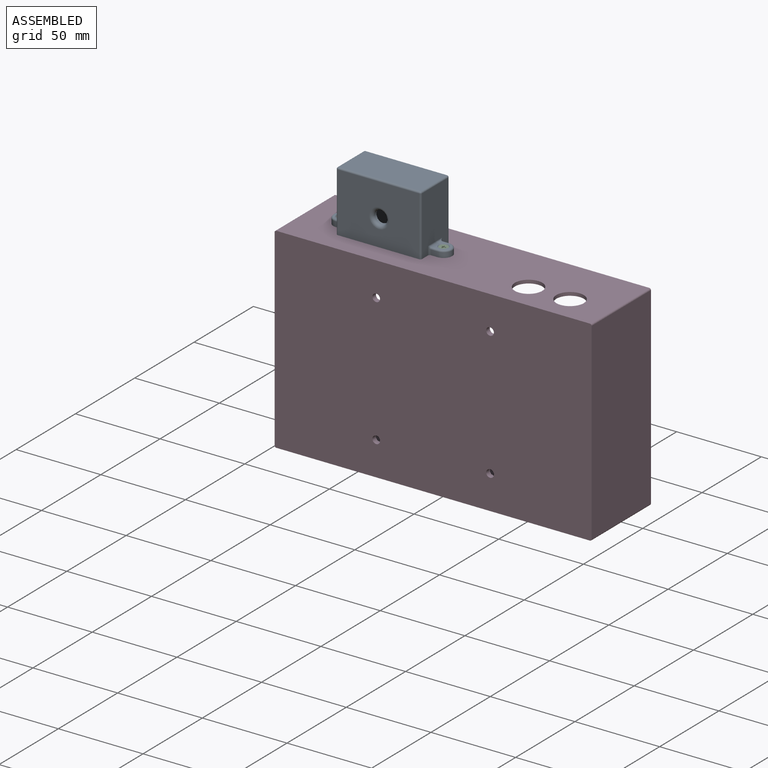
[diagram: assembled view]
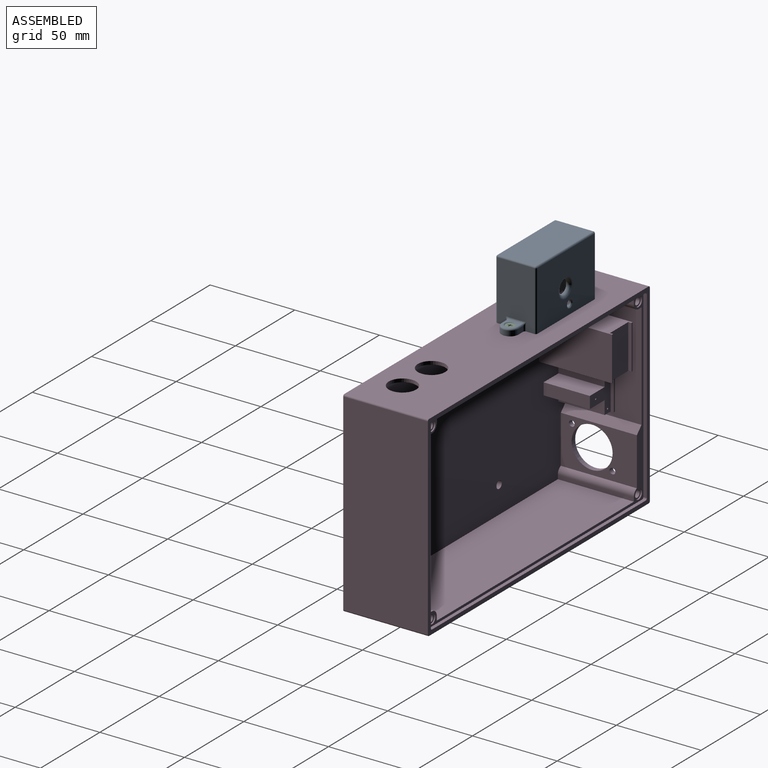
[diagram: assembled view, second angle]
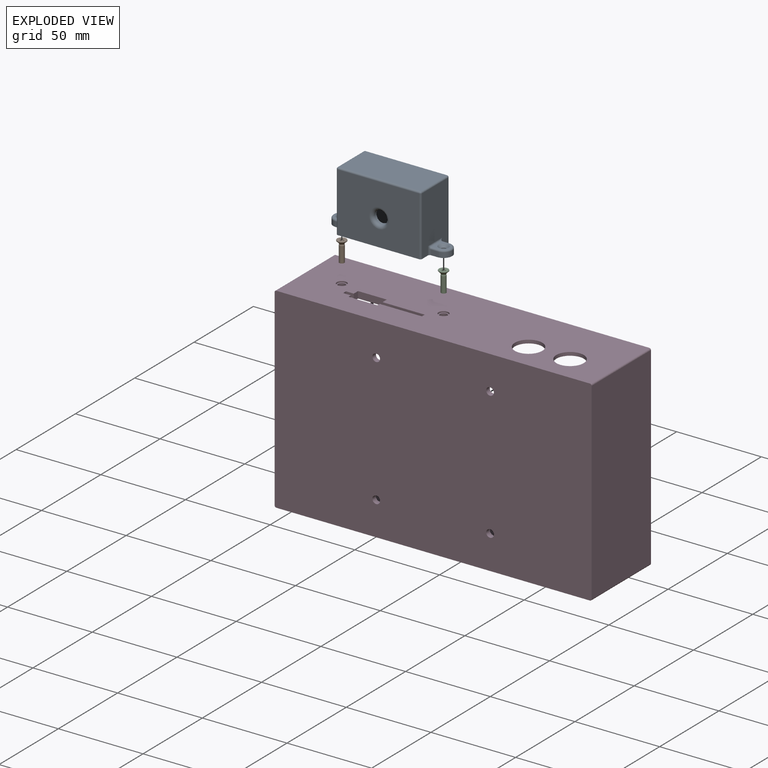
[diagram: exploded view]
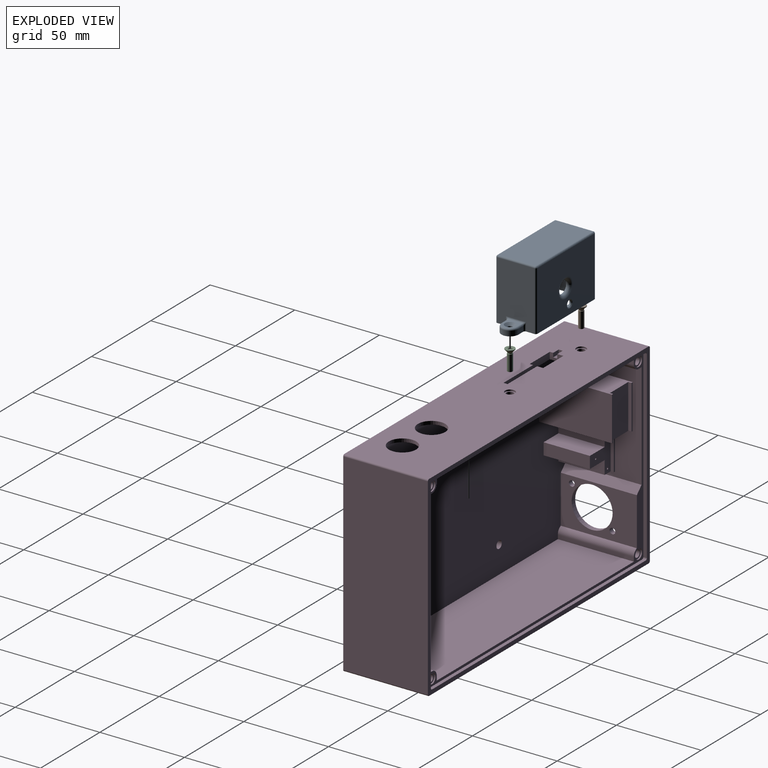
[diagram: exploded view, second angle]
ASSEMBLY  parts=4 mates=4
PART A: 74 faces, bbox 70.9x24x36 mm
  f0: plane 13.6x1mm, normal (-1,0,0), area 13.6mm2, adj f13,f18,f19,f73
  f1: plane 35x22mm, normal (-1,0,0), area 710mm2, adj f5,f37,f38,f39,f42,f48,f51
  f2: plane 35x2mm, normal (-1,0,0), area 70mm2, adj f5,f11,f21,f23
  f3: plane 35x2mm, normal (1,0,0), area 70mm2, adj f4,f5,f21,f23
  f4: plane 35x4.7mm, normal (0,-1,0), area 164.5mm2, adj f3,f5,f12,f23
  f5: plane 70.1x24mm, normal (0,0,1), area 477.3mm2, adj f1,f2,f3,f4,f7,f8,f9,f11
  f6: plane 28.8x15.8mm, normal (0,0,1), area 455mm2, adj f13,f14,f20,f25
  f7: plane 48.1x35mm, normal (0,1,0), area 1574.1mm2, adj f5,f45,f49,f51,f68
  f8: plane 48.1x35mm, normal (0,-1,0), area 1557.5mm2, adj f5,f40,f42,f43,f69,f71
  f9: plane 35x22mm, normal (1,0,0), area 710mm2, adj f5,f34,f35,f36,f40,f44,f45
  f10: plane 48.1x22mm, normal (0,0,-1), area 1058.2mm2, adj f43,f44,f48,f49
  f11: plane 35x28.8mm, normal (0,-1,0), area 960.2mm2, adj f2,f5,f14,f23,f67
  f12: plane 35x18.2mm, normal (1,0,0), area 562.7mm2, adj f4,f5,f13,f15,f23,f24
  f13: plane 46.7x35mm, normal (0,1,0), area 1138.7mm2, adj f0,f5,f6,f12,f14,f15,f16,f17
  f14: plane 35x18.2mm, normal (-1,0,0), area 562.7mm2, adj f5,f6,f11,f13,f23,f25
  f15: plane 15.8x4.7mm, normal (0,0,1), area 74.3mm2, adj f12,f13,f22,f24
  f16: plane 3.8x1mm, normal (-1,0,0), area 3.8mm2, adj f5,f13,f18,f72
  f17: plane 21x1mm, normal (1,0,0), area 21mm2, adj f5,f13,f18,f19
  f18: plane 21x15.5mm, normal (0,1,0), area 280.4mm2, adj f0,f5,f16,f17,f19,f70,f72,f73
  f19: plane 13.2x1mm, normal (0,0,1), area 13.2mm2, adj f0,f13,f17,f18
  f20: plane 15.8x4.7mm, normal (-1,0,0), area 74.3mm2, adj f6,f13,f23,f25
  f21: plane 35x13.2mm, normal (0,-1,0), area 462mm2, adj f2,f3,f5,f23
  f22: plane 15.8x4.7mm, normal (1,0,0), area 74.3mm2, adj f13,f15,f23,f24
  f23: plane 46.7x20.2mm, normal (0,0,1), area 347mm2, adj f2,f3,f4,f11,f12,f13,f14,f20
  f24: plane 4.7x4.7mm, normal (0,1,0), area 22.1mm2, adj f12,f15,f22,f23
  f25: plane 28.8x4.7mm, normal (0,1,0), area 135.4mm2, adj f6,f14,f20,f23
  f26: plane 4x3mm, normal (0,-1,0), area 12mm2, adj f5,f33,f37,f53
  f27: plane 4x3mm, normal (0,1,0), area 12mm2, adj f5,f33,f39,f55
  f28: plane 8x8mm, normal (0,0,-1), area 28.9mm2, adj f38,f53,f54,f55,f63
  f29: plane 4x3mm, normal (0,1,0), area 12mm2, adj f5,f32,f34,f58
  f30: plane 4x3mm, normal (0,-1,0), area 12mm2, adj f5,f32,f36,f60
  f31: plane 8x8mm, normal (0,0,-1), area 28.9mm2, adj f35,f58,f59,f60,f65
  f32: cylinder r=5mm len=10mm, axis (0,0,-1), area 47.1mm2, adj f5,f29,f30,f59
  f33: cylinder r=5mm len=10mm, axis (0,0,-1), area 47.1mm2, adj f5,f26,f27,f54
  f34: cylinder r=1mm len=5mm, axis (0,0,-1), area 5.9mm2, adj f5,f9,f29,f57
  f35: cylinder r=1mm len=12mm, axis (0,-1,0), area 14.8mm2, adj f9,f31,f57,f61
  f36: cylinder r=1mm len=5mm, axis (0,0,1), area 5.9mm2, adj f5,f9,f30,f61
  f37: cylinder r=1mm len=5mm, axis (0,0,1), area 5.9mm2, adj f1,f5,f26,f52
  f38: cylinder r=1mm len=12mm, axis (0,-1,0), area 14.8mm2, adj f1,f28,f52,f56
  f39: cylinder r=1mm len=5mm, axis (0,0,-1), area 5.9mm2, adj f1,f5,f27,f56
  f40: cylinder r=1mm len=35mm, axis (0,0,-1), area 55mm2, adj f5,f8,f9,f41
  f41: sphere r=1mm, area 1.6mm2, adj f40,f43,f44
  f42: cylinder r=1mm len=35mm, axis (0,0,1), area 55mm2, adj f1,f5,f8,f46
  f43: cylinder r=1mm len=48.1mm, axis (1,0,0), area 75.6mm2, adj f8,f10,f41,f46
  f44: cylinder r=1mm len=22mm, axis (0,1,0), area 34.6mm2, adj f9,f10,f41,f47
  f45: cylinder r=1mm len=35mm, axis (0,0,1), area 55mm2, adj f5,f7,f9,f47
  f46: sphere r=1mm, area 1.6mm2, adj f42,f43,f48
  f47: sphere r=1mm, area 1.6mm2, adj f44,f45,f49
  f48: cylinder r=1mm len=22mm, axis (0,-1,0), area 34.6mm2, adj f1,f10,f46,f50
  f49: cylinder r=1mm len=48.1mm, axis (-1,0,0), area 75.6mm2, adj f7,f10,f47,f50
  f50: sphere r=1mm, area 1.6mm2, adj f48,f49,f51
  f51: cylinder r=1mm len=35mm, axis (0,0,-1), area 55mm2, adj f1,f5,f7,f50
  f52: bspline ~2x2mm, area 1.9mm2, adj f37,f38,f53
  f53: cylinder r=1mm len=4mm, axis (-1,0,0), area 6.3mm2, adj f26,f28,f52,f54
  f54: torus R=4mm, axis (0,0,1), area 22.9mm2, adj f28,f33,f53,f55
  f55: cylinder r=1mm len=4mm, axis (1,0,0), area 6.3mm2, adj f27,f28,f54,f56
  f56: bspline ~2x2mm, area 1.9mm2, adj f38,f39,f55
  f57: bspline ~2x2mm, area 1.9mm2, adj f34,f35,f58
  f58: cylinder r=1mm len=4mm, axis (1,0,0), area 6.3mm2, adj f29,f31,f57,f59
  f59: torus R=4mm, axis (0,0,1), area 22.9mm2, adj f31,f32,f58,f60
  f60: cylinder r=1mm len=4mm, axis (-1,0,0), area 6.3mm2, adj f30,f31,f59,f61
  f61: bspline ~2x2mm, area 1.9mm2, adj f35,f36,f60
  f62: cylinder r=1.5mm len=3mm, axis (0,0,-1), area 23.6mm2, adj f5,f63
  f63: cone r=1.5mm half-angle=45deg, axis (0,0,-1), area 30mm2, adj f28,f62
  f64: cylinder r=1.5mm len=3mm, axis (0,0,-1), area 23.6mm2, adj f5,f65
  f65: cone r=1.5mm half-angle=45deg, axis (0,0,-1), area 30mm2, adj f31,f64
  f66: cylinder r=3.9mm len=7.8mm, axis (0,-1,0), area 9.8mm2, adj f13,f69
  f67: cylinder r=3.9mm len=7.8mm, axis (0,-1,0), area 34.3mm2, adj f11,f68
  f68: torus R=5.9mm, axis (0,1,0), area 91.3mm2, adj f7,f67
  f69: torus R=5.9mm, axis (0,1,0), area 91.3mm2, adj f8,f66
  f70: cylinder r=1.8mm len=3.6mm, axis (0,-1,0), area 15.8mm2, adj f13,f18,f71,f72,f73
  f71: cone r=1.8mm half-angle=45deg, axis (0,-1,0), area 9.1mm2, adj f8,f70
  f72: plane 2.3x1mm, normal (0,0,-1), area 2.3mm2, adj f13,f16,f18,f70
  f73: plane 2.3x1mm, normal (0,0,1), area 2.3mm2, adj f0,f13,f18,f70
PART B: 45 faces, bbox 5.9x5.9x12.4 mm
  f0: cylinder r=1.5mm len=9.35mm, axis (0,0,-1), area 88.1mm2, adj f1,f44
  f1: torus R=1.95mm, axis (0,0,-1), area 4.3mm2, adj f0,f2
  f2: cylinder r=1.31mm len=2.63mm, axis (0,0,-1), area 0.9mm2, adj f1,f3
  f3: torus R=1.95mm, axis (0,0,-1), area 4.3mm2, adj f2,f4
  f4: cone r=2.12mm half-angle=45deg, axis (0,0,1), area 23.6mm2, adj f3,f5
  f5: cylinder r=2.75mm len=5.5mm, axis (0,0,-1), area 6.9mm2, adj f4,f43
  f6: torus R=1.5mm, axis (0,0,1), area 0.2mm2, adj f15,f23,f39,f43
  f7: torus R=1.5mm, axis (0,0,1), area 0.2mm2, adj f21,f31,f36,f43
  f8: cone r=0.95mm half-angle=17.3deg, axis (0,0,1), area 1.6mm2, adj f10,f14,f27,f41
  f9: cone r=0.95mm half-angle=17.3deg, axis (0,0,1), area 1.6mm2, adj f10,f22,f34,f40
  f10: cone r=0.33mm half-angle=62deg, axis (0,0,1), area 1.5mm2, adj f8,f9,f13,f14,f15,f16,f19,f20
  f11: plane 1.97x0.06mm, normal (-0.03,1,0), area 0.1mm2, adj f12,f26,f42,f43
  f12: plane 1.97x0.06mm, normal (-1,0.03,0), area 0.1mm2, adj f11,f13,f42,f43
  f13: cylinder r=0.13mm len=2.01mm, axis (0,0,-1), area 0.2mm2, adj f10,f12,f15,f42,f43
  f14: plane 2.38x1.29mm, normal (1,0,0), area 0.7mm2, adj f8,f10,f24,f41,f43
  f15: plane 2.38x1.29mm, normal (0,1,0), area 0.7mm2, adj f6,f10,f13,f39,f43
  f16: cylinder r=0.13mm len=2.01mm, axis (0,0,-1), area 0.2mm2, adj f10,f17,f23,f38,f43
  f17: plane 1.97x0.06mm, normal (-1,-0.03,0), area 0.1mm2, adj f16,f18,f38,f43
  f18: plane 1.97x0.06mm, normal (-0.03,-1,0), area 0.1mm2, adj f17,f20,f38,f43
  f19: cylinder r=0.13mm len=2.01mm, axis (0,0,-1), area 0.2mm2, adj f10,f21,f28,f35,f43
  f20: cylinder r=0.13mm len=2.01mm, axis (0,0,-1), area 0.2mm2, adj f10,f18,f22,f38,f43
  f21: plane 2.38x1.29mm, normal (0,-1,0), area 0.7mm2, adj f7,f10,f19,f36,f43
  f22: plane 2.38x1.29mm, normal (-1,0,0), area 0.7mm2, adj f9,f10,f20,f40,f43
  f23: plane 2.38x1.29mm, normal (0,-1,0), area 0.7mm2, adj f6,f10,f16,f39,f43
  f24: cylinder r=0.13mm len=2.01mm, axis (0,0,-1), area 0.2mm2, adj f10,f14,f25,f37,f43
  f25: plane 1.97x0.06mm, normal (0.03,1,0), area 0.1mm2, adj f24,f30,f37,f43
  f26: cylinder r=0.13mm len=2.01mm, axis (0,0,-1), area 0.2mm2, adj f10,f11,f27,f42,f43
  f27: plane 2.38x1.29mm, normal (-1,0,0), area 0.7mm2, adj f8,f10,f26,f41,f43
  f28: plane 1.97x0.06mm, normal (1,-0.03,0), area 0.1mm2, adj f19,f33,f35,f43
  f29: cylinder r=0.13mm len=2.01mm, axis (0,0,-1), area 0.2mm2, adj f10,f30,f31,f37,f43
  f30: plane 1.97x0.06mm, normal (1,0.03,0), area 0.1mm2, adj f25,f29,f37,f43
  f31: plane 2.38x1.29mm, normal (0,1,0), area 0.7mm2, adj f7,f10,f29,f36,f43
  f32: cylinder r=0.13mm len=2.01mm, axis (0,0,-1), area 0.2mm2, adj f10,f33,f34,f35,f43
  f33: plane 1.97x0.06mm, normal (0.03,-1,0), area 0.1mm2, adj f28,f32,f35,f43
  f34: plane 2.38x1.29mm, normal (1,0,0), area 0.7mm2, adj f9,f10,f32,f40,f43
  f35: cone r=0.95mm half-angle=17.3deg, axis (0,0,1), area 0mm2, adj f10,f19,f28,f32,f33
  f36: cone r=0.95mm half-angle=17.3deg, axis (0,0,1), area 1.6mm2, adj f7,f10,f21,f31
  f37: cone r=0.95mm half-angle=17.3deg, axis (0,0,1), area 0mm2, adj f10,f24,f25,f29,f30
  f38: cone r=0.95mm half-angle=17.3deg, axis (0,0,1), area 0mm2, adj f10,f16,f17,f18,f20
  f39: cone r=0.95mm half-angle=17.3deg, axis (0,0,1), area 1.6mm2, adj f6,f10,f15,f23
  f40: torus R=1.5mm, axis (0,0,1), area 0.2mm2, adj f9,f22,f34,f43
  f41: torus R=1.5mm, axis (0,0,1), area 0.2mm2, adj f8,f14,f27,f43
  f42: cone r=0.95mm half-angle=17.3deg, axis (0,0,1), area 0mm2, adj f10,f11,f12,f13,f26
  f43: plane 5.5x5.5mm, normal (0,0,1), area 19.8mm2, adj f5,f6,f7,f11,f12,f13,f14,f15
  f44: plane 3x3mm, normal (0,0,-1), area 7.1mm2, adj f0
PART C: same geometry as B
PART D: 143 faces, bbox 187.2x115.8x50 mm
  f0: plane 185.2x50mm, normal (0,-1,0), area 8588.1mm2, adj f3,f4,f9,f13,f50,f51,f121,f122
  f1: plane 179.2x109.8mm, normal (0,0,1), area 18209.6mm2, adj f2,f5,f6,f7,f8,f19,f20,f21
  f2: plane 62.8x44.9mm, normal (1,0,0), area 2152.2mm2, adj f1,f18,f21,f59,f92,f98,f101
  f3: cylinder r=8.1mm len=16.2mm, axis (0,1,0), area 101.8mm2, adj f0,f65
  f4: cylinder r=8.1mm len=16.2mm, axis (0,1,0), area 101.8mm2, adj f0,f65
  f5: cylinder r=4mm len=44.9mm, axis (0,0,1), area 213.1mm2, adj f1,f18,f19,f53
  f6: plane 94.8x44.9mm, normal (-1,0,0), area 4256.5mm2, adj f1,f18,f23,f25
  f7: plane 166.2x44.9mm, normal (0,1,0), area 5617.8mm2, adj f1,f18,f20,f24,f63,f64,f121,f122
  f8: plane 166.2x44.9mm, normal (0,-1,0), area 7462.4mm2, adj f1,f18,f19,f22
  f9: plane 187.2x115.8mm, normal (0,0,1), area 1490mm2, adj f0,f10,f11,f12,f14,f15,f16,f17
  f10: plane 185.2x50mm, normal (0,1,0), area 9260mm2, adj f9,f13,f49,f52
  f11: plane 113.8x50mm, normal (-1,0,0), area 4640mm2, adj f9,f13,f49,f50,f54,f55,f56,f57
  f12: plane 113.8x50mm, normal (1,0,0), area 5690mm2, adj f9,f13,f51,f52
  f13: plane 187.2x115.8mm, normal (0,0,-1), area 21613.3mm2, adj f0,f10,f11,f12,f49,f50,f51,f52
  f14: plane 180.2x2.1mm, normal (0,-1,0), area 378.4mm2, adj f9,f18,f26,f29
  f15: plane 108.8x2.1mm, normal (1,0,0), area 228.5mm2, adj f9,f18,f26,f27
  f16: plane 180.2x2.1mm, normal (0,1,0), area 378.4mm2, adj f9,f18,f27,f28
  f17: plane 108.8x2.1mm, normal (-1,0,0), area 228.5mm2, adj f9,f18,f28,f29
  f18: plane 182.2x110.8mm, normal (0,0,1), area 1038.9mm2, adj f2,f5,f6,f7,f8,f14,f15,f16
  f19: plane 44.9x2.5mm, normal (1,0,0), area 112.3mm2, adj f1,f5,f8,f18
  f20: plane 44.9x2.5mm, normal (1,0,0), area 112.2mm2, adj f1,f7,f18,f48
  f21: plane 44.9x2.5mm, normal (0,1,0), area 112.2mm2, adj f1,f2,f18,f48
  f22: plane 44.9x2.5mm, normal (-1,0,0), area 112.3mm2, adj f1,f8,f18,f46
  f23: plane 44.9x2.5mm, normal (0,-1,0), area 112.3mm2, adj f1,f6,f18,f46
  f24: plane 44.9x4.5mm, normal (-1,0,0), area 170.2mm2, adj f1,f7,f18,f47,f64,f65
  f25: plane 44.9x2.5mm, normal (0,1,0), area 112.3mm2, adj f1,f6,f18,f47
  f26: cylinder r=1mm len=2.1mm, axis (0,0,-1), area 3.3mm2, adj f9,f14,f15,f18
  f27: cylinder r=1mm len=2.1mm, axis (0,0,1), area 3.3mm2, adj f9,f15,f16,f18
  f28: cylinder r=1mm len=2.1mm, axis (0,0,-1), area 3.3mm2, adj f9,f16,f17,f18
  f29: cylinder r=1mm len=2.1mm, axis (0,0,1), area 3.3mm2, adj f9,f14,f17,f18
  f30: cone r=0mm half-angle=59deg, axis (0,0,1), area 16.2mm2, adj f31
  f31: cylinder r=2.1mm len=9.2mm, axis (0,0,1), area 121.4mm2, adj f30,f32
  f32: plane 5.8x5.8mm, normal (0,0,1), area 12.6mm2, adj f31,f33
  f33: cylinder r=2.9mm len=5.8mm, axis (0,0,1), area 14.6mm2, adj f18,f32
  f34: cone r=0mm half-angle=59deg, axis (0,0,1), area 16.2mm2, adj f35
  f35: cylinder r=2.1mm len=9.2mm, axis (0,0,1), area 121.4mm2, adj f34,f36
  f36: plane 5.8x5.8mm, normal (0,0,1), area 12.6mm2, adj f35,f37
  f37: cylinder r=2.9mm len=5.8mm, axis (0,0,1), area 14.6mm2, adj f18,f36
  f38: cone r=0mm half-angle=59deg, axis (0,0,1), area 16.2mm2, adj f39
  f39: cylinder r=2.1mm len=9.2mm, axis (0,0,1), area 121.4mm2, adj f38,f40
  f40: plane 5.8x5.8mm, normal (0,0,1), area 12.6mm2, adj f39,f41
  f41: cylinder r=2.9mm len=5.8mm, axis (0,0,1), area 14.6mm2, adj f18,f40
  f42: cone r=0mm half-angle=59deg, axis (0,0,1), area 16.2mm2, adj f43
  f43: cylinder r=2.1mm len=9.2mm, axis (0,0,1), area 121.4mm2, adj f42,f44
  f44: plane 5.8x5.8mm, normal (0,0,1), area 12.6mm2, adj f43,f45
  f45: cylinder r=2.9mm len=5.8mm, axis (0,0,1), area 14.6mm2, adj f18,f44
  f46: cylinder r=4mm len=44.9mm, axis (0,0,1), area 282.1mm2, adj f1,f18,f22,f23
  f47: cylinder r=4mm len=44.9mm, axis (0,0,1), area 282.1mm2, adj f1,f18,f24,f25
  f48: cylinder r=4mm len=44.9mm, axis (0,0,1), area 282.1mm2, adj f1,f18,f20,f21
  f49: cylinder r=1mm len=50mm, axis (0,0,-1), area 78.5mm2, adj f9,f10,f11,f13
  f50: cylinder r=1mm len=50mm, axis (0,0,1), area 78.5mm2, adj f0,f9,f11,f13
  f51: cylinder r=1mm len=50mm, axis (0,0,-1), area 78.5mm2, adj f0,f9,f12,f13
  f52: cylinder r=1mm len=50mm, axis (0,0,1), area 78.5mm2, adj f9,f10,f12,f13
  f53: plane 44.9x28.29mm, normal (1,0,0), area 792.2mm2, adj f1,f5,f18,f59,f60,f61,f62
  f54: plane 35x5mm, normal (0,-1,0), area 175mm2, adj f11,f55,f57,f58
  f55: plane 30x5mm, normal (0,0,1), area 150mm2, adj f11,f54,f56,f58
  f56: plane 35x5mm, normal (0,1,0), area 175mm2, adj f11,f55,f57,f58
  f57: plane 30x5mm, normal (0,0,-1), area 150mm2, adj f11,f54,f56,f58
  f58: plane 35x30mm, normal (-1,0,0), area 571.9mm2, adj f54,f55,f56,f57,f60,f61,f62
  f59: plane 44.9x4mm, normal (0.71,-0.71,0), area 254mm2, adj f1,f2,f18,f53
  f60: cylinder r=12.1mm len=24.2mm, axis (-1,0,0), area 228.1mm2, adj f53,f58
  f61: cylinder r=1.7mm len=3.4mm, axis (-1,0,0), area 32mm2, adj f53,f58
  f62: cylinder r=1.7mm len=3.4mm, axis (-1,0,0), area 32mm2, adj f53,f58
  f63: plane 29x2mm, normal (1,0,0), area 58mm2, adj f1,f7,f64,f65
  f64: plane 53.5x2mm, normal (0,0,-1), area 107mm2, adj f7,f24,f63,f65
  f65: plane 53.5x29mm, normal (0,1,0), area 1139.3mm2, adj f1,f3,f4,f24,f63,f64
  f66: cylinder r=2.25mm len=5mm, axis (0,0,-1), area 70.7mm2, adj f67,f83
  f67: plane 4.5x4.5mm, normal (0,0,1), area 15.1mm2, adj f66,f88
  f68: cylinder r=2.25mm len=5mm, axis (0,0,-1), area 70.7mm2, adj f69,f82
  f69: plane 4.5x4.5mm, normal (0,0,1), area 15.1mm2, adj f68,f90
  f70: cylinder r=2.25mm len=5mm, axis (0,0,-1), area 70.7mm2, adj f71,f81
  f71: plane 4.5x4.5mm, normal (0,0,1), area 15.1mm2, adj f70,f84
  f72: cylinder r=2.25mm len=5mm, axis (0,0,-1), area 70.7mm2, adj f73,f80
  f73: plane 4.5x4.5mm, normal (0,0,1), area 15.1mm2, adj f72,f86
  f74: cylinder r=2.25mm len=5mm, axis (0,0,-1), area 70.7mm2, adj f75,f79
  f75: plane 4.5x4.5mm, normal (0,0,1), area 15.9mm2, adj f74
  f76: cylinder r=2.25mm len=5mm, axis (0,0,-1), area 70.7mm2, adj f77,f78
  f77: plane 4.5x4.5mm, normal (0,0,1), area 15.9mm2, adj f76
  f78: torus R=3.25mm, axis (0,0,1), area 25.8mm2, adj f1,f76
  f79: torus R=3.25mm, axis (0,0,1), area 25.8mm2, adj f1,f74
  f80: torus R=3.25mm, axis (0,0,1), area 25.8mm2, adj f1,f72
  f81: torus R=3.25mm, axis (0,0,1), area 25.8mm2, adj f1,f70
  f82: torus R=3.25mm, axis (0,0,1), area 25.8mm2, adj f1,f68
  f83: torus R=3.25mm, axis (0,0,1), area 25.8mm2, adj f1,f66
  f84: cylinder r=0.5mm len=5mm, axis (0,0,1), area 15.7mm2, adj f71,f85
  f85: cone r=0mm half-angle=59deg, axis (0,0,1), area 0.9mm2, adj f84
  f86: cylinder r=0.5mm len=5mm, axis (0,0,1), area 15.7mm2, adj f73,f87
  f87: cone r=0mm half-angle=59deg, axis (0,0,1), area 0.9mm2, adj f86
  f88: cylinder r=0.5mm len=5mm, axis (0,0,1), area 15.7mm2, adj f67,f89
  f89: cone r=0mm half-angle=59deg, axis (0,0,1), area 0.9mm2, adj f88
  f90: cylinder r=0.5mm len=5mm, axis (0,0,1), area 15.7mm2, adj f69,f91
  f91: cone r=0mm half-angle=59deg, axis (0,0,1), area 0.9mm2, adj f90
  f92: plane 29.2x6mm, normal (0,-1,0), area 165.7mm2, adj f1,f2,f93,f99,f100,f101
  f93: plane 27.3x7.93mm, normal (1,0,0), area 216.5mm2, adj f1,f92,f94,f99
  f94: plane 27.3x12.5mm, normal (0,-1,0), area 341.2mm2, adj f1,f93,f95,f99
  f95: plane 27.3x7mm, normal (1,0,0), area 191.1mm2, adj f1,f94,f96,f99
  f96: plane 27.3x12.5mm, normal (0,1,0), area 341.2mm2, adj f1,f95,f97,f99
  f97: plane 27.3x7.93mm, normal (1,0,0), area 216.5mm2, adj f1,f96,f98,f99
  f98: plane 29.2x6mm, normal (0,1,0), area 165.7mm2, adj f1,f2,f97,f99,f100,f101
  f99: plane 22.86x17.5mm, normal (0,0,1), area 199.4mm2, adj f92,f93,f94,f95,f96,f97,f98,f100
  f100: plane 22.86x1.9mm, normal (1,0,0), area 43.4mm2, adj f92,f98,f99,f101
  f101: plane 22.86x1mm, normal (0,0,1), area 22.9mm2, adj f2,f92,f98,f100
  f102: cylinder r=0.5mm len=5mm, axis (0,0,1), area 15.7mm2, adj f99,f103
  f103: cone r=0mm half-angle=59deg, axis (0,0,1), area 0.9mm2, adj f102
  f104: cylinder r=0.5mm len=5mm, axis (0,0,1), area 15.7mm2, adj f99,f105
  f105: cone r=0mm half-angle=59deg, axis (0,0,1), area 0.9mm2, adj f104
  f106: cylinder r=0.5mm len=5mm, axis (0,0,1), area 15.7mm2, adj f99,f107
  f107: cone r=0mm half-angle=59deg, axis (0,0,1), area 0.9mm2, adj f106
  f108: plane 43x17.4mm, normal (0,-1,0), area 718.9mm2, adj f1,f110,f111,f112,f113,f114,f115,f116
  f109: plane 43x17.4mm, normal (0,1,0), area 718.9mm2, adj f1,f110,f111,f112,f113,f114,f115,f116
  f110: plane 26x15.4mm, normal (0,0,1), area 400.4mm2, adj f108,f109,f111,f114
  f111: plane 26x1.9mm, normal (1,0,0), area 49.4mm2, adj f108,f109,f110,f113
  f112: plane 43x26mm, normal (-1,0,0), area 1118mm2, adj f1,f108,f109,f113
  f113: plane 26x1mm, normal (0,0,1), area 26mm2, adj f108,f109,f111,f112
  f114: plane 26x1.9mm, normal (-1,0,0), area 49.4mm2, adj f108,f109,f110,f116
  f115: plane 43x26mm, normal (1,0,0), area 1118mm2, adj f1,f108,f109,f116
  f116: plane 26x1mm, normal (0,0,1), area 26mm2, adj f108,f109,f114,f115
  f117: cylinder r=2.25mm len=4.5mm, axis (0,0,-1), area 42.4mm2, adj f1,f13
  f118: cylinder r=2.25mm len=4.5mm, axis (0,0,-1), area 42.4mm2, adj f1,f13
  f119: cylinder r=2.25mm len=4.5mm, axis (0,0,-1), area 42.4mm2, adj f1,f13
  f120: cylinder r=2.25mm len=4.5mm, axis (0,0,-1), area 42.4mm2, adj f1,f13
  f121: plane 8x4mm, normal (1,0,0), area 26.2mm2, adj f0,f7,f122,f124,f129,f130,f131
  f122: plane 17x4mm, normal (0,0,1), area 68mm2, adj f0,f7,f121,f123
  f123: plane 8x4mm, normal (-1,0,0), area 26.2mm2, adj f0,f7,f122,f124,f125,f126,f127
  f124: plane 17x4mm, normal (0,0,-1), area 68mm2, adj f0,f7,f121,f123
  f125: plane 24.9x2.4mm, normal (0,-1,0), area 59.8mm2, adj f123,f126,f127,f128
  f126: plane 24.9x2.4mm, normal (0,0,-1), area 59.8mm2, adj f0,f123,f125,f128
  f127: plane 24.9x2.4mm, normal (0,0,1), area 59.8mm2, adj f0,f123,f125,f128
  f128: plane 2.4x2.4mm, normal (-1,0,0), area 5.8mm2, adj f0,f125,f126,f127
  f129: plane 4.6x2.4mm, normal (0,0,1), area 11mm2, adj f0,f121,f131,f132
  f130: plane 4.6x2.4mm, normal (0,0,-1), area 11mm2, adj f0,f121,f131,f132
  f131: plane 4.6x2.4mm, normal (0,-1,0), area 11mm2, adj f121,f129,f130,f132
  f132: plane 2.4x2.4mm, normal (1,0,0), area 5.8mm2, adj f0,f129,f130,f131
  f133: plane 8x8mm, normal (0,1,0), area 36.4mm2, adj f136,f140
  f134: plane 8x8mm, normal (0,1,0), area 36.4mm2, adj f135,f137
  f135: torus R=5mm, axis (0,-1,0), area 43.1mm2, adj f7,f134
  f136: torus R=5mm, axis (0,-1,0), area 43.1mm2, adj f7,f133
  f137: cylinder r=2.1mm len=4.2mm, axis (0,-1,0), area 55.4mm2, adj f134,f138
  f138: plane 5.8x5.8mm, normal (0,-1,0), area 12.6mm2, adj f137,f139
  f139: cylinder r=2.9mm len=5.8mm, axis (0,-1,0), area 14.6mm2, adj f0,f138
  f140: cylinder r=2.1mm len=4.2mm, axis (0,-1,0), area 55.4mm2, adj f133,f141
  f141: plane 5.8x5.8mm, normal (0,-1,0), area 12.6mm2, adj f140,f142
  f142: cylinder r=2.9mm len=5.8mm, axis (0,-1,0), area 14.6mm2, adj f0,f141
PLACE A rot(axis=(1,0,0),180deg) t=(-177.98,-51.85,4.85)mm
PLACE B t=(-182.98,-63.85,-27.5)mm
PLACE C t=(-122.88,-63.85,-27.5)mm
PLACE D rot(axis=(-1,0,0),90deg) t=(-205.13,-88.85,-31.15)mm
MATE parallel A.f5 <-> D.f0  axis (0,0,-1) through (-151.93,-64.49,-31.15)mm
MATE cylindrical B.f5 <-> D.f135  axis (0,0,-1) through (-182.98,-63.85,-34.82)mm
MATE fastened A.f59 <-> C.f5  axis (0,0,1) through (-122.88,-63.85,-27.9)mm
MATE fastened A.f54 <-> B.f5  axis (0,0,1) through (-182.98,-63.85,-27.9)mm
